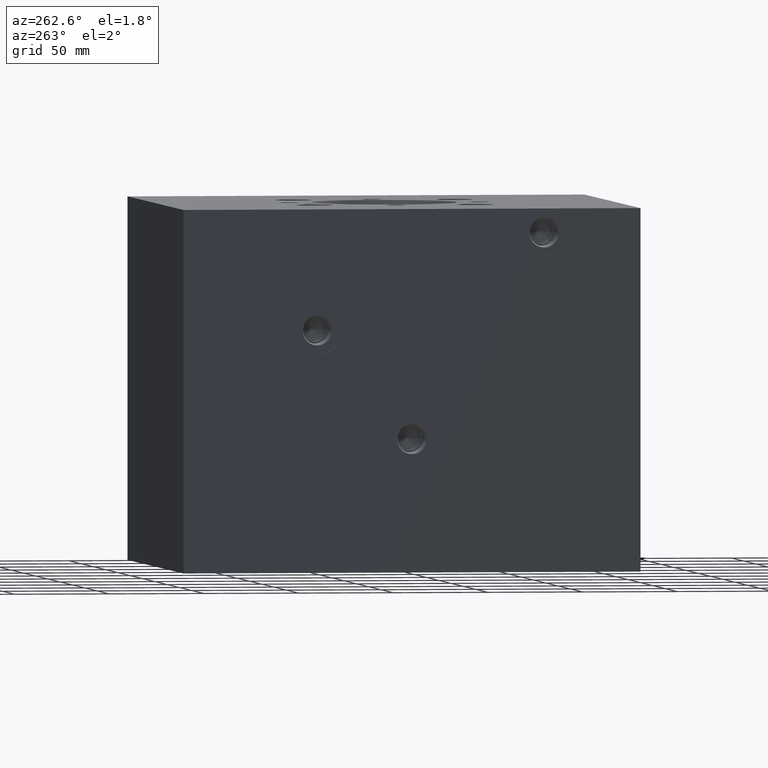
[diagram: clean part render]
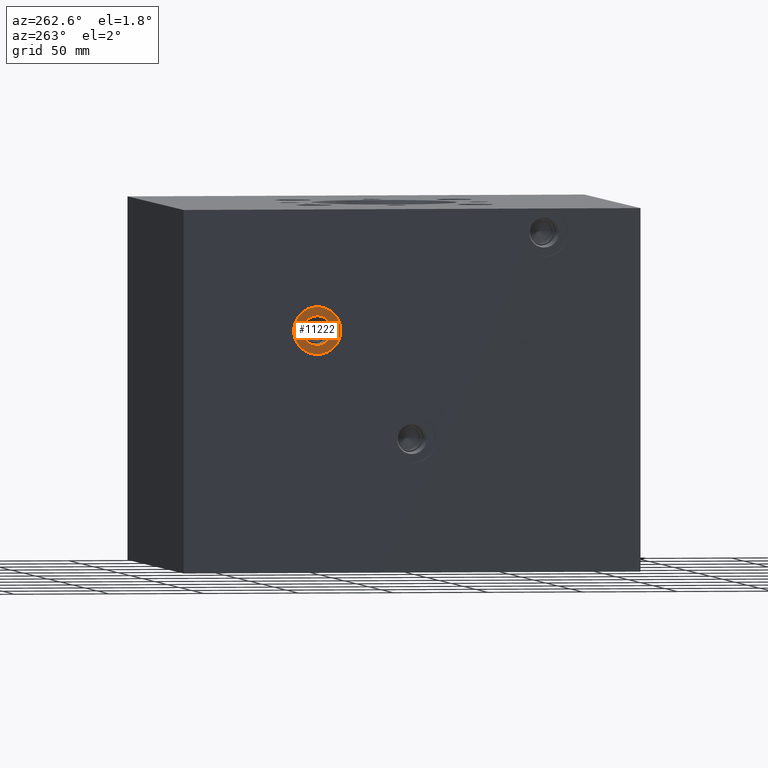
[diagram: same view with one face highlighted and labeled with its STEP entity id]
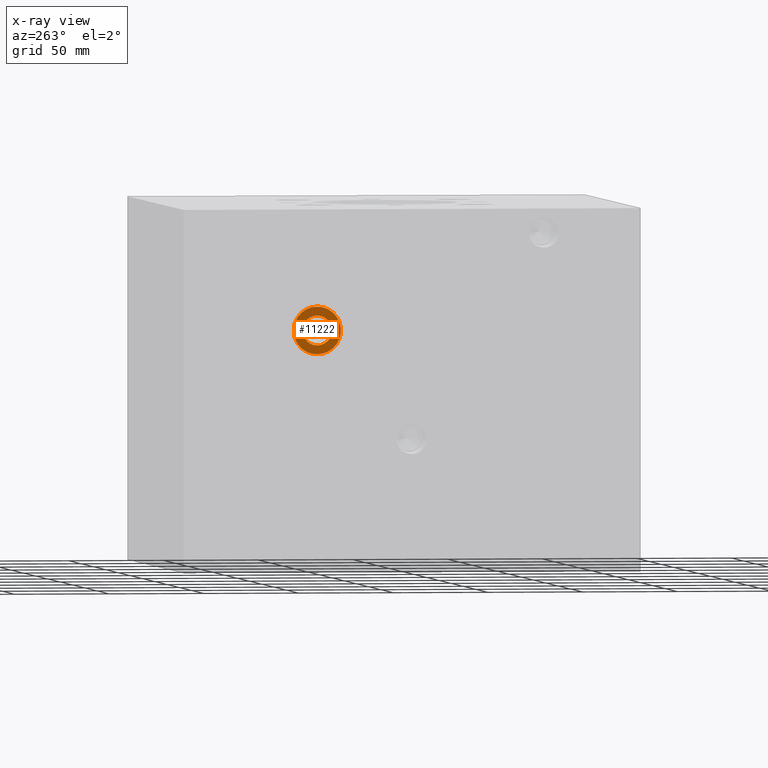
[diagram: x-ray of the same camera — body ghosted, the highlighted face saturated]
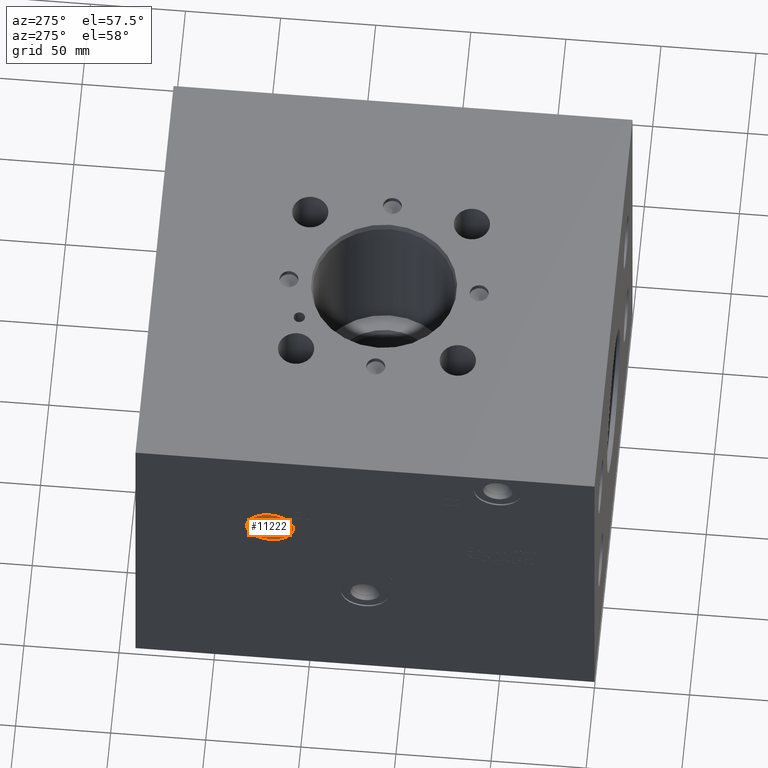
[diagram: same view with one face highlighted and labeled with its STEP entity id]
A machine part, auxiliary view. The second image highlights one B-rep face of the part: STEP entity #11222.
The next image is the same camera in x-ray: the body ghosted, the highlighted face saturated — about 0% of this face is hidden behind the body in this view.
A second angle (auxiliary view) of the same face is appended — the face is thin or edge-on in the first view.
In plain terms, the highlighted planar face has unit normal (1, 0, 0).
Its self-contained STEP definition (entity closure, byte-faithful):
#264=CIRCLE('',#11846,12.5095);
#265=CIRCLE('',#11847,12.5095);
#266=CIRCLE('',#11849,7.79780000000001);
#267=CIRCLE('',#11850,7.79780000000001);
#761=FACE_BOUND('',#1920,.T.);
#1276=FACE_OUTER_BOUND('',#1919,.T.);
#1919=EDGE_LOOP('',(#9469,#9470));
#1920=EDGE_LOOP('',(#9471,#9472));
#5133=VERTEX_POINT('',#18623);
#5134=VERTEX_POINT('',#18625);
#5135=VERTEX_POINT('',#18629);
#5136=VERTEX_POINT('',#18630);
#6634=EDGE_CURVE('',#5133,#5134,#264,.T.);
#6635=EDGE_CURVE('',#5134,#5133,#265,.T.);
#6636=EDGE_CURVE('',#5135,#5136,#266,.T.);
#6637=EDGE_CURVE('',#5136,#5135,#267,.T.);
#9469=ORIENTED_EDGE('',*,*,#6635,.F.);
#9470=ORIENTED_EDGE('',*,*,#6634,.F.);
#9471=ORIENTED_EDGE('',*,*,#6636,.T.);
#9472=ORIENTED_EDGE('',*,*,#6637,.T.);
#10304=PLANE('',#11848);
#11222=ADVANCED_FACE('',(#1276,#761),#10304,.F.);
#11846=AXIS2_PLACEMENT_3D('',#18626,#14130,#14131);
#11847=AXIS2_PLACEMENT_3D('',#18627,#14132,#14133);
#11848=AXIS2_PLACEMENT_3D('',#18628,#14134,#14135);
#11849=AXIS2_PLACEMENT_3D('',#18631,#14136,#14137);
#11850=AXIS2_PLACEMENT_3D('',#18632,#14138,#14139);
#14130=DIRECTION('center_axis',(1.,0.,0.));
#14131=DIRECTION('ref_axis',(0.,0.,-1.));
#14132=DIRECTION('center_axis',(1.,0.,0.));
#14133=DIRECTION('ref_axis',(0.,0.,-1.));
#14134=DIRECTION('center_axis',(1.,0.,0.));
#14135=DIRECTION('ref_axis',(0.,0.,-1.));
#14136=DIRECTION('center_axis',(1.,0.,0.));
#14137=DIRECTION('ref_axis',(0.,0.,-1.));
#14138=DIRECTION('center_axis',(1.,0.,0.));
#14139=DIRECTION('ref_axis',(0.,0.,-1.));
#18623=CARTESIAN_POINT('',(0.7874,170.6626,114.4905));
#18625=CARTESIAN_POINT('',(0.7874,170.6626,139.5095));
#18626=CARTESIAN_POINT('Origin',(0.7874,170.6626,127.));
#18627=CARTESIAN_POINT('Origin',(0.7874,170.6626,127.));
#18628=CARTESIAN_POINT('Origin',(0.7874,170.6626,134.7978));
#18629=CARTESIAN_POINT('',(0.7874,170.6626,134.7978));
#18630=CARTESIAN_POINT('',(0.787399999999995,170.6626,119.2022));
#18631=CARTESIAN_POINT('Origin',(0.7874,170.6626,127.));
#18632=CARTESIAN_POINT('Origin',(0.7874,170.6626,127.));